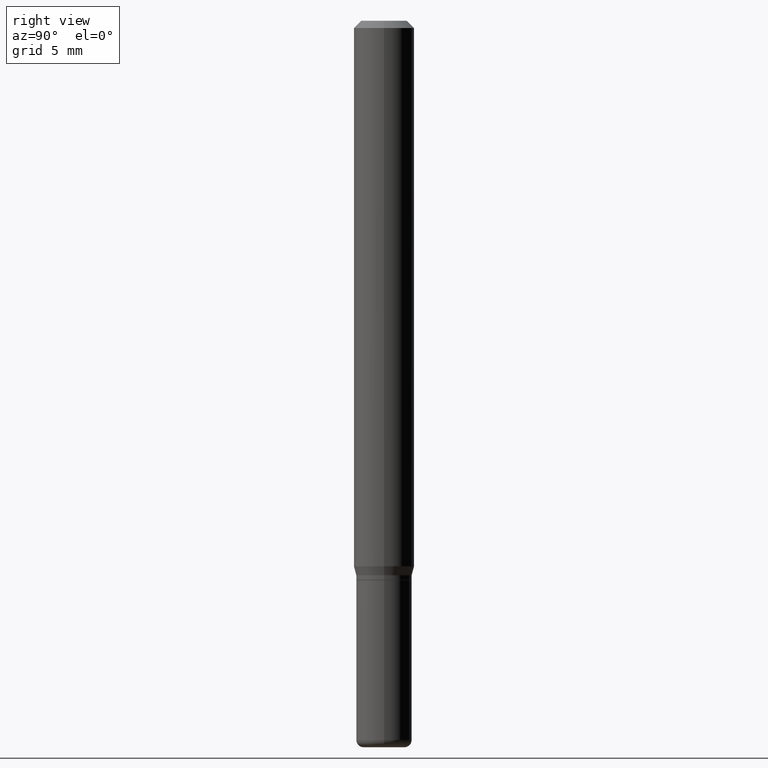
[diagram: clean part render]
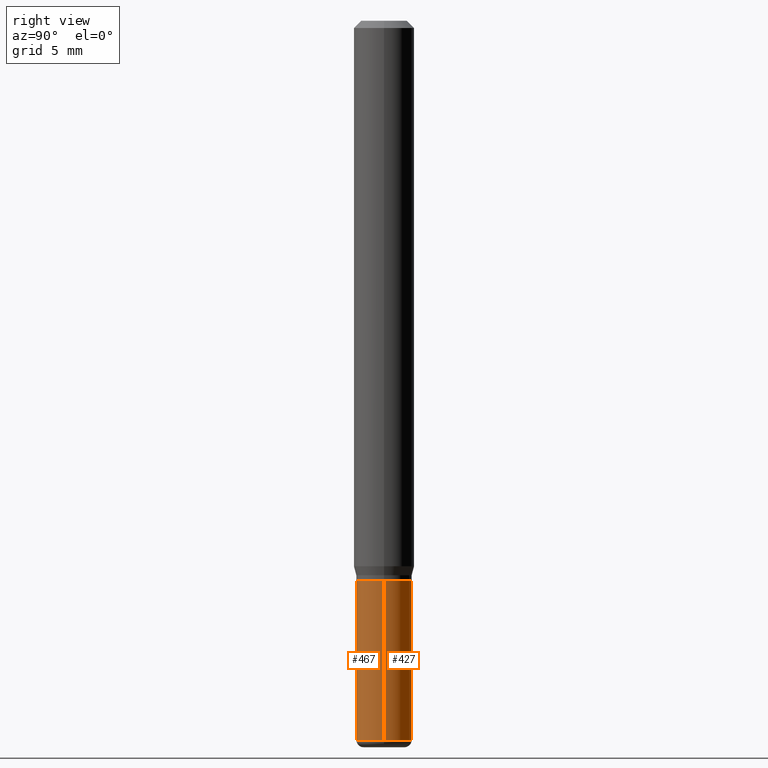
[diagram: same view with one multi-face feature highlighted, each face labeled with its STEP entity id]
A machine part, right view. The highlighted faces form ONE feature: a constant-radius fillet chain: 2 tangent blend faces with common blend radius 1.4605 mm. The faces share edges in the B-rep.
Their STEP definitions:
[1] entity #467 (Cylinder):
#6 = CARTESIAN_POINT ( 'NONE',  ( 0.05749999999999999556, -4.015203539669603161E-16, 2.803801646082662590E-30 ) ) ;
#7 = VERTEX_POINT ( 'NONE', #202 ) ;
#8 = DIRECTION ( 'NONE',  ( 1.000000000000000000, -6.982962677686266711E-15, 4.876176775795935232E-29 ) ) ;
#10 = DIRECTION ( 'NONE',  ( -2.445468806185136877E-29, 3.491481338843145188E-15, 1.000000000000000000 ) ) ;
#28 = VERTEX_POINT ( 'NONE', #172 ) ;
#39 = LINE ( 'NONE', #436, #243 ) ;
#46 = AXIS2_PLACEMENT_3D ( 'NONE', #295, #188, #344 ) ;
#52 = CARTESIAN_POINT ( 'NONE',  ( 0.000000000000000000, 0.000000000000000000, 0.000000000000000000 ) ) ;
#61 = CYLINDRICAL_SURFACE ( 'NONE', #222, 0.05749999999999999556 ) ;
#66 = EDGE_CURVE ( 'NONE', #390, #7, #220, .T. ) ;
#94 = DIRECTION ( 'NONE',  ( -2.445468806185136597E-29, 3.491481338843145583E-15, 1.000000000000000000 ) ) ;
#105 = CARTESIAN_POINT ( 'NONE',  ( -0.05749999999999998168, -4.200193294210894862E-15, -1.485000000000000098 ) ) ;
#124 = ORIENTED_EDGE ( 'NONE', *, *, #66, .T. ) ;
#132 = VERTEX_POINT ( 'NONE', #105 ) ;
#137 = CARTESIAN_POINT ( 'NONE',  ( 0.05749999999999998168, -5.586370142149031512E-15, -1.485000000000000098 ) ) ;
#155 = VECTOR ( 'NONE', #10, 39.37007874015748143 ) ;
#167 = ORIENTED_EDGE ( 'NONE', *, *, #461, .F. ) ;
#172 = CARTESIAN_POINT ( 'NONE',  ( -0.05750000000000000250, -4.200193294210894862E-15, -1.155000000000000027 ) ) ;
#188 = DIRECTION ( 'NONE',  ( -2.445468806185136597E-29, 3.491481338843145583E-15, 1.000000000000000000 ) ) ;
#193 = EDGE_CURVE ( 'NONE', #132, #28, #39, .T. ) ;
#202 = CARTESIAN_POINT ( 'NONE',  ( 0.05750000000000000250, -4.434181300330794192E-15, -1.155000000000000027 ) ) ;
#220 = LINE ( 'NONE', #6, #155 ) ;
#222 = AXIS2_PLACEMENT_3D ( 'NONE', #52, #487, #8 ) ;
#228 = ORIENTED_EDGE ( 'NONE', *, *, #476, .T. ) ;
#243 = VECTOR ( 'NONE', #246, 39.37007874015748143 ) ;
#246 = DIRECTION ( 'NONE',  ( -2.445468806185136877E-29, 3.491481338843145188E-15, 1.000000000000000000 ) ) ;
#260 = EDGE_LOOP ( 'NONE', ( #386, #228, #124, #167 ) ) ;
#273 = AXIS2_PLACEMENT_3D ( 'NONE', #511, #94, #384 ) ;
#295 = CARTESIAN_POINT ( 'NONE',  ( 3.631521177184928138E-29, -5.184849788182071492E-15, -1.485000000000000098 ) ) ;
#340 = CIRCLE ( 'NONE', #46, 0.05749999999999998168 ) ;
#344 = DIRECTION ( 'NONE',  ( 1.000000000000000000, -6.982962677686258822E-15, 0.000000000000000000 ) ) ;
#384 = DIRECTION ( 'NONE',  ( 1.000000000000000000, -6.982962677686273810E-15, 0.000000000000000000 ) ) ;
#386 = ORIENTED_EDGE ( 'NONE', *, *, #193, .F. ) ;
#388 = FACE_OUTER_BOUND ( 'NONE', #260, .T. ) ;
#390 = VERTEX_POINT ( 'NONE', #137 ) ;
#436 = CARTESIAN_POINT ( 'NONE',  ( -0.05749999999999999556, 4.085620730620575753E-16, -2.828387676896570362E-30 ) ) ;
#447 = CIRCLE ( 'NONE', #273, 0.05750000000000000250 ) ;
#461 = EDGE_CURVE ( 'NONE', #28, #7, #447, .T. ) ;
#467 = ADVANCED_FACE ( 'NONE', ( #388 ), #61, .T. ) ;
#476 = EDGE_CURVE ( 'NONE', #132, #390, #340, .T. ) ;
#487 = DIRECTION ( 'NONE',  ( -2.445468806185136597E-29, 3.491481338843145583E-15, 1.000000000000000000 ) ) ;
#511 = CARTESIAN_POINT ( 'NONE',  ( 2.824516471143833307E-29, -4.032660946363833383E-15, -1.155000000000000027 ) ) ;
[2] entity #427 (Cylinder):
#6 = CARTESIAN_POINT ( 'NONE',  ( 0.05749999999999999556, -4.015203539669603161E-16, 2.803801646082662590E-30 ) ) ;
#7 = VERTEX_POINT ( 'NONE', #202 ) ;
#10 = DIRECTION ( 'NONE',  ( -2.445468806185136877E-29, 3.491481338843145188E-15, 1.000000000000000000 ) ) ;
#21 = EDGE_CURVE ( 'NONE', #390, #132, #272, .T. ) ;
#28 = VERTEX_POINT ( 'NONE', #172 ) ;
#34 = DIRECTION ( 'NONE',  ( -2.445468806185136597E-29, 3.491481338843145583E-15, 1.000000000000000000 ) ) ;
#39 = LINE ( 'NONE', #436, #243 ) ;
#45 = AXIS2_PLACEMENT_3D ( 'NONE', #239, #34, #164 ) ;
#66 = EDGE_CURVE ( 'NONE', #390, #7, #220, .T. ) ;
#89 = ORIENTED_EDGE ( 'NONE', *, *, #348, .F. ) ;
#103 = EDGE_LOOP ( 'NONE', ( #383, #460, #89, #301 ) ) ;
#105 = CARTESIAN_POINT ( 'NONE',  ( -0.05749999999999998168, -4.200193294210894862E-15, -1.485000000000000098 ) ) ;
#114 = FACE_OUTER_BOUND ( 'NONE', #103, .T. ) ;
#115 = DIRECTION ( 'NONE',  ( 1.000000000000000000, -6.982962677686273810E-15, 0.000000000000000000 ) ) ;
#119 = DIRECTION ( 'NONE',  ( -2.445468806185136597E-29, 3.491481338843145583E-15, 1.000000000000000000 ) ) ;
#131 = DIRECTION ( 'NONE',  ( 1.000000000000000000, -6.982962677686266711E-15, 4.876176775795935232E-29 ) ) ;
#132 = VERTEX_POINT ( 'NONE', #105 ) ;
#137 = CARTESIAN_POINT ( 'NONE',  ( 0.05749999999999998168, -5.586370142149031512E-15, -1.485000000000000098 ) ) ;
#146 = AXIS2_PLACEMENT_3D ( 'NONE', #408, #293, #131 ) ;
#155 = VECTOR ( 'NONE', #10, 39.37007874015748143 ) ;
#164 = DIRECTION ( 'NONE',  ( 1.000000000000000000, -6.982962677686258822E-15, 0.000000000000000000 ) ) ;
#172 = CARTESIAN_POINT ( 'NONE',  ( -0.05750000000000000250, -4.200193294210894862E-15, -1.155000000000000027 ) ) ;
#193 = EDGE_CURVE ( 'NONE', #132, #28, #39, .T. ) ;
#202 = CARTESIAN_POINT ( 'NONE',  ( 0.05750000000000000250, -4.434181300330794192E-15, -1.155000000000000027 ) ) ;
#220 = LINE ( 'NONE', #6, #155 ) ;
#239 = CARTESIAN_POINT ( 'NONE',  ( 3.631521177184928138E-29, -5.184849788182071492E-15, -1.485000000000000098 ) ) ;
#243 = VECTOR ( 'NONE', #246, 39.37007874015748143 ) ;
#246 = DIRECTION ( 'NONE',  ( -2.445468806185136877E-29, 3.491481338843145188E-15, 1.000000000000000000 ) ) ;
#272 = CIRCLE ( 'NONE', #45, 0.05749999999999998168 ) ;
#293 = DIRECTION ( 'NONE',  ( -2.445468806185136597E-29, 3.491481338843145583E-15, 1.000000000000000000 ) ) ;
#301 = ORIENTED_EDGE ( 'NONE', *, *, #66, .F. ) ;
#318 = CARTESIAN_POINT ( 'NONE',  ( 2.824516471143833307E-29, -4.032660946363833383E-15, -1.155000000000000027 ) ) ;
#348 = EDGE_CURVE ( 'NONE', #7, #28, #424, .T. ) ;
#355 = CYLINDRICAL_SURFACE ( 'NONE', #146, 0.05749999999999999556 ) ;
#383 = ORIENTED_EDGE ( 'NONE', *, *, #21, .T. ) ;
#390 = VERTEX_POINT ( 'NONE', #137 ) ;
#408 = CARTESIAN_POINT ( 'NONE',  ( 0.000000000000000000, 0.000000000000000000, 0.000000000000000000 ) ) ;
#424 = CIRCLE ( 'NONE', #484, 0.05750000000000000250 ) ;
#427 = ADVANCED_FACE ( 'NONE', ( #114 ), #355, .T. ) ;
#436 = CARTESIAN_POINT ( 'NONE',  ( -0.05749999999999999556, 4.085620730620575753E-16, -2.828387676896570362E-30 ) ) ;
#460 = ORIENTED_EDGE ( 'NONE', *, *, #193, .T. ) ;
#484 = AXIS2_PLACEMENT_3D ( 'NONE', #318, #119, #115 ) ;